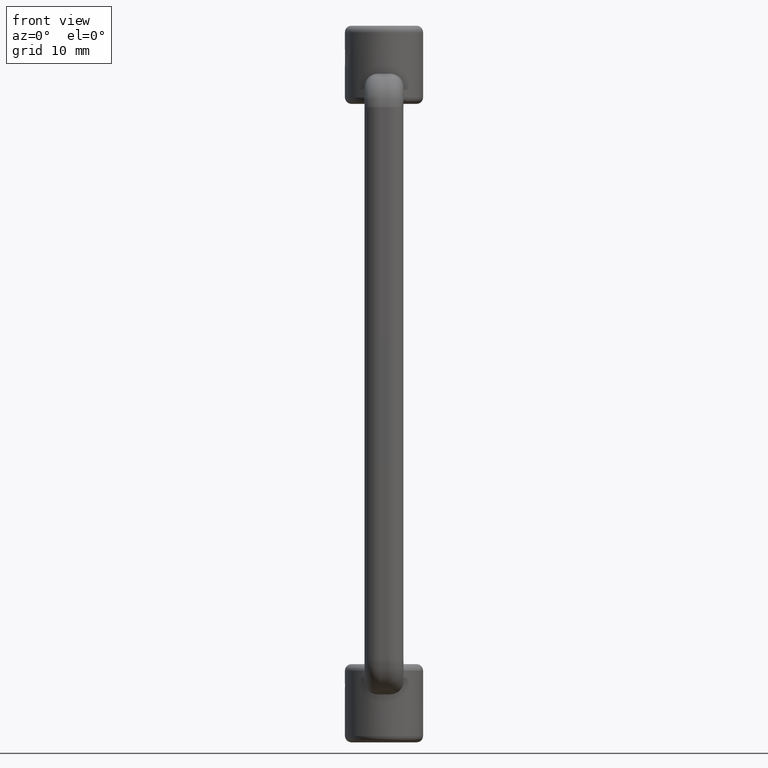
[diagram: clean part render]
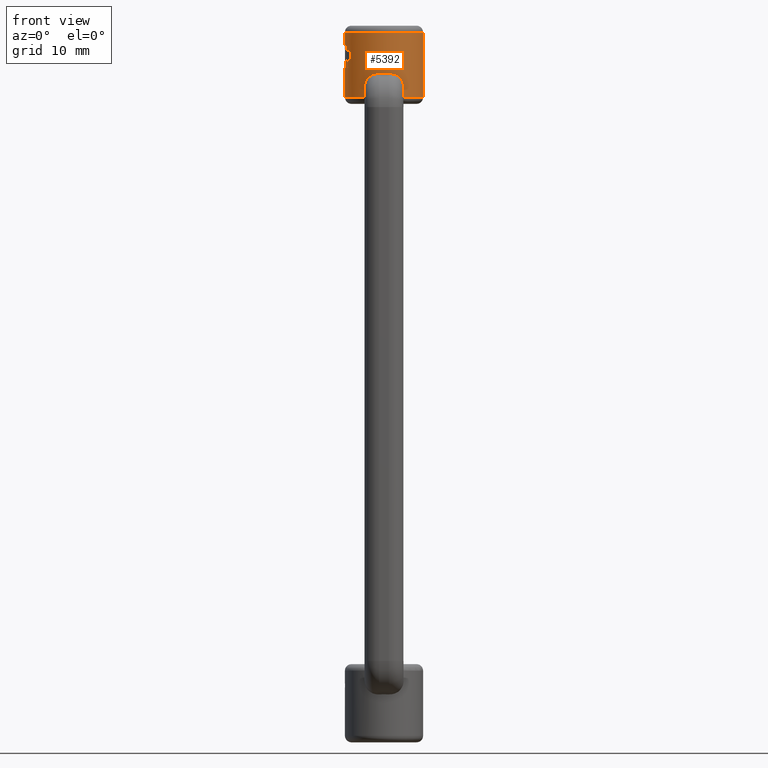
[diagram: same view with one face highlighted and labeled with its STEP entity id]
A machine part, front view. The second image highlights one B-rep face of the part: STEP entity #5392.
In plain terms, the highlighted cylindrical surface (partial cylindrical patch) has radius 6 mm, axis along (-0, -0, 1).
Its self-contained STEP definition (entity closure, byte-faithful):
#35 = VECTOR ( 'NONE', #5380, 1000.000000000000000 ) ;
#57 = ORIENTED_EDGE ( 'NONE', *, *, #16951, .T. ) ;
#86 = CARTESIAN_POINT ( 'NONE',  ( 0.0000000000000000000, 8.766172331216892400E-017, 44.00000000000000000 ) ) ;
#112 = CIRCLE ( 'NONE', #2202, 6.000000000000010700 ) ;
#122 = EDGE_CURVE ( 'NONE', #16494, #2806, #8639, .T. ) ;
#184 = CARTESIAN_POINT ( 'NONE',  ( -5.829001676913454900, -1.422230449167874600, 50.94130608974358400 ) ) ;
#191 = EDGE_CURVE ( 'NONE', #2806, #1206, #7372, .T. ) ;
#309 = CARTESIAN_POINT ( 'NONE',  ( -5.020110415954266400, -3.286105812603667100, 52.00000000000000000 ) ) ;
#446 = CARTESIAN_POINT ( 'NONE',  ( 3.006789111494904800, -5.192295254808551700, 45.43910314158557600 ) ) ;
#505 = CARTESIAN_POINT ( 'NONE',  ( 2.518899704307326900, -5.446201719094947400, 46.91376766499575300 ) ) ;
#543 = CARTESIAN_POINT ( 'NONE',  ( 2.647647802095501200, -5.384232639481599100, 44.00000000000000000 ) ) ;
#609 = CARTESIAN_POINT ( 'NONE',  ( -2.937028009429679500, -5.232118848946893100, 46.08331505875865700 ) ) ;
#724 = CARTESIAN_POINT ( 'NONE',  ( 0.0000000000000000000, 8.766172331216892400E-017, 43.00000000000000000 ) ) ;
#988 = EDGE_CURVE ( 'NONE', #16494, #1975, #6535, .T. ) ;
#1191 = AXIS2_PLACEMENT_3D ( 'NONE', #13273, #6717, #11947 ) ;
#1206 = VERTEX_POINT ( 'NONE', #4493 ) ;
#1249 = CARTESIAN_POINT ( 'NONE',  ( -5.748206089968974200, -1.719920564224905800, 52.00000000000000000 ) ) ;
#1491 = AXIS2_PLACEMENT_3D ( 'NONE', #724, #12575, #7390 ) ;
#1534 = CIRCLE ( 'NONE', #8452, 6.000000000000009800 ) ;
#1708 = B_SPLINE_CURVE_WITH_KNOTS ( 'NONE', 3,
 ( #11332, #4692, #2071, #3448 ),
 .UNSPECIFIED., .F., .F.,
 ( 4, 4 ),
 ( 0.0000000000000000000, 1.000000000000000000 ),
 .UNSPECIFIED. ) ;
#1733 = LINE ( 'NONE', #2802, #7085 ) ;
#1857 = ORIENTED_EDGE ( 'NONE', *, *, #122, .F. ) ;
#1881 = CARTESIAN_POINT ( 'NONE',  ( -2.876389095800485900, -5.265699093875367600, 46.28729861658227700 ) ) ;
#1975 = VERTEX_POINT ( 'NONE', #10804 ) ;
#1995 = CARTESIAN_POINT ( 'NONE',  ( -2.647647802106354800, -5.384232639476262100, 44.00000000000000000 ) ) ;
#2001 = DIRECTION ( 'NONE',  ( -0.0000000000000000000, -0.0000000000000000000, 1.000000000000000000 ) ) ;
#2071 = CARTESIAN_POINT ( 'NONE',  ( -5.227788996538787800, -2.951107793066412900, 49.66666666666666400 ) ) ;
#2129 = ORIENTED_EDGE ( 'NONE', *, *, #16729, .T. ) ;
#2161 = EDGE_CURVE ( 'NONE', #6976, #6697, #16005, .T. ) ;
#2202 = AXIS2_PLACEMENT_3D ( 'NONE', #2523, #16924, #14212 ) ;
#2277 = EDGE_CURVE ( 'NONE', #12147, #14068, #3711, .T. ) ;
#2294 = CARTESIAN_POINT ( 'NONE',  ( -0.5020489336777608200, -5.984179347933527500, 47.62973186184836300 ) ) ;
#2523 = CARTESIAN_POINT ( 'NONE',  ( 0.0000000000000000000, 8.766172331216892400E-017, 52.00000000000000000 ) ) ;
#2736 = EDGE_CURVE ( 'NONE', #9759, #6697, #1733, .T. ) ;
#2802 = CARTESIAN_POINT ( 'NONE',  ( -6.000000000000010700, 8.224498028005821500E-016, 43.00000000000000000 ) ) ;
#2806 = VERTEX_POINT ( 'NONE', #13212 ) ;
#3101 = CARTESIAN_POINT ( 'NONE',  ( 2.945415158984749000, -5.227405318499182700, 46.08118356738097500 ) ) ;
#3149 = CARTESIAN_POINT ( 'NONE',  ( -2.139499387634895100, -5.608793237177804000, 47.26842114431990200 ) ) ;
#3169 = CARTESIAN_POINT ( 'NONE',  ( -6.000000000000010700, 8.224498028005821500E-016, 44.00000000000000000 ) ) ;
#3260 = CARTESIAN_POINT ( 'NONE',  ( -2.705202318175256200, -5.356494360880863500, 46.66855899341489100 ) ) ;
#3448 = CARTESIAN_POINT ( 'NONE',  ( -5.318956321578233400, -2.776455230891194500, 48.49999999999999300 ) ) ;
#3456 = CARTESIAN_POINT ( 'NONE',  ( -5.765903812712871900, -1.680836609969770700, 50.12753739316239200 ) ) ;
#3500 = ORIENTED_EDGE ( 'NONE', *, *, #2736, .F. ) ;
#3586 = CIRCLE ( 'NONE', #1191, 6.000000000000010700 ) ;
#3637 = CARTESIAN_POINT ( 'NONE',  ( -5.999924257142286200, -0.03014811031751705700, 52.00000000000000000 ) ) ;
#3669 = ORIENTED_EDGE ( 'NONE', *, *, #191, .F. ) ;
#3711 = B_SPLINE_CURVE_WITH_KNOTS ( 'NONE', 3,
 ( #11604, #6191, #10157, #16724 ),
 .UNSPECIFIED., .F., .F.,
 ( 4, 4 ),
 ( 0.0000000000000000000, 1.000000000000000000 ),
 .UNSPECIFIED. ) ;
#3736 = VERTEX_POINT ( 'NONE', #16607 ) ;
#4316 = CARTESIAN_POINT ( 'NONE',  ( 2.143290492561870800, -5.607358268053874700, 47.26585826454376600 ) ) ;
#4432 = CARTESIAN_POINT ( 'NONE',  ( -1.780751197024106800, -5.732795511912036600, 47.46783385374886400 ) ) ;
#4472 = ORIENTED_EDGE ( 'NONE', *, *, #2277, .T. ) ;
#4493 = CARTESIAN_POINT ( 'NONE',  ( -0.7499999999999981100, -5.952940449895340400, 47.64159737816591900 ) ) ;
#4543 = CARTESIAN_POINT ( 'NONE',  ( -2.585578421057401300, -5.416492610243455600, 46.84347446244596100 ) ) ;
#4662 = CARTESIAN_POINT ( 'NONE',  ( -2.800668084150553600, -5.308986296950158700, 44.39628917195786800 ) ) ;
#4692 = CARTESIAN_POINT ( 'NONE',  ( -5.128012561610508300, -3.121266115952655800, 50.83333333333332900 ) ) ;
#4784 = DIRECTION ( 'NONE',  ( 1.000000000000000000, 0.0000000000000000000, 0.0000000000000000000 ) ) ;
#4837 = CARTESIAN_POINT ( 'NONE',  ( 0.0000000000000000000, 8.766172331216892400E-017, 44.00000000000000000 ) ) ;
#4839 = CIRCLE ( 'NONE', #7784, 6.000000000000010700 ) ;
#4855 = B_SPLINE_CURVE_WITH_KNOTS ( 'NONE', 3,
 ( #12517, #11140, #13775, #16325, #4432, #3149, #13602, #4543, #3260, #7169, #1881, #609, #12350, #8429, #16439, #9769, #4662, #1995 ),
 .UNSPECIFIED., .F., .F.,
 ( 4, 2, 2, 2, 2, 2, 2, 2, 4 ),
 ( 1.989487527437686900E-007, 0.0006422322189905879900, 0.001284265489228432200, 0.001926298759466276200, 0.002568332029704120700, 0.002889348664823042000, 0.003210365299941963400, 0.003852398570179807800, 0.005136465110655495000 ),
 .UNSPECIFIED. ) ;
#4962 = VERTEX_POINT ( 'NONE', #13145 ) ;
#5081 = EDGE_LOOP ( 'NONE', ( #12783, #15115, #15038, #3669, #1857, #12013, #7525, #8366, #3500, #2129, #57, #5871, #15332, #9163, #4472, #16894, #14357, #8344, #10918, #10299, #16552 ) ) ;
#5270 = EDGE_CURVE ( 'NONE', #16440, #11407, #1708, .T. ) ;
#5291 = B_SPLINE_CURVE_WITH_KNOTS ( 'NONE', 3,
 ( #16492, #8607, #16386, #11086 ),
 .UNSPECIFIED., .F., .F.,
 ( 4, 4 ),
 ( 0.0000000000000000000, 1.000000000000000000 ),
 .UNSPECIFIED. ) ;
#5380 = DIRECTION ( 'NONE',  ( -0.0000000000000000000, -0.0000000000000000000, 1.000000000000000000 ) ) ;
#5392 = ADVANCED_FACE ( 'NONE', ( #14259 ), #6824, .T. ) ;
#5525 = CARTESIAN_POINT ( 'NONE',  ( -2.647647802106354800, -5.384232639476262100, 44.00000000000000000 ) ) ;
#5639 = CARTESIAN_POINT ( 'NONE',  ( 0.9650953604838098400, -5.925840981704811700, 47.65189060879237100 ) ) ;
#5749 = CARTESIAN_POINT ( 'NONE',  ( 2.751915404549501800, -5.331932984584225800, 46.57028028939994600 ) ) ;
#5866 = EDGE_CURVE ( 'NONE', #11750, #10844, #7820, .T. ) ;
#5871 = ORIENTED_EDGE ( 'NONE', *, *, #15502, .T. ) ;
#5997 = CARTESIAN_POINT ( 'NONE',  ( -5.970098431671918800, -0.6455801439905802800, 50.52624198717948200 ) ) ;
#6020 = EDGE_CURVE ( 'NONE', #4962, #6562, #15893, .T. ) ;
#6126 = CARTESIAN_POINT ( 'NONE',  ( 0.0000000000000000000, 8.766172331216892400E-017, 48.49999999999999300 ) ) ;
#6191 = CARTESIAN_POINT ( 'NONE',  ( -5.449840656507765500, -2.512905754457286400, 50.52624198717948200 ) ) ;
#6230 = CARTESIAN_POINT ( 'NONE',  ( -5.499551675904338100, -2.398943801771503500, 49.78936298076922600 ) ) ;
#6272 = CARTESIAN_POINT ( 'NONE',  ( 0.4995404833553977500, -5.984495382968245500, 47.62961182179902400 ) ) ;
#6363 = EDGE_CURVE ( 'NONE', #11580, #3736, #15700, .T. ) ;
#6535 = CIRCLE ( 'NONE', #7098, 6.000000000000010700 ) ;
#6562 = VERTEX_POINT ( 'NONE', #1249 ) ;
#6606 = CARTESIAN_POINT ( 'NONE',  ( -5.938604984139017200, -0.8971221784516798500, 49.31376869658119200 ) ) ;
#6697 = VERTEX_POINT ( 'NONE', #16667 ) ;
#6717 = DIRECTION ( 'NONE',  ( -0.0000000000000000000, -0.0000000000000000000, 1.000000000000000000 ) ) ;
#6799 = DIRECTION ( 'NONE',  ( -0.0000000000000000000, -0.0000000000000000000, 1.000000000000000000 ) ) ;
#6824 = CYLINDRICAL_SURFACE ( 'NONE', #1491, 6.000000000000010700 ) ;
#6976 = VERTEX_POINT ( 'NONE', #12614 ) ;
#7085 = VECTOR ( 'NONE', #10634, 1000.000000000000000 ) ;
#7098 = AXIS2_PLACEMENT_3D ( 'NONE', #86, #11869, #9290 ) ;
#7124 = CARTESIAN_POINT ( 'NONE',  ( 2.937398188807678800, -5.232067944592826000, 44.79533901303744900 ) ) ;
#7169 = CARTESIAN_POINT ( 'NONE',  ( -2.838942773334230700, -5.286108378082665200, 46.38542160062280600 ) ) ;
#7267 = CARTESIAN_POINT ( 'NONE',  ( -5.685571157909509000, -1.935236185900580900, 49.31376869658119900 ) ) ;
#7372 = B_SPLINE_CURVE_WITH_KNOTS ( 'NONE', 3,
 ( #12767, #6272, #15261, #10064, #2294, #12889 ),
 .UNSPECIFIED., .F., .F.,
 ( 4, 2, 4 ),
 ( 0.01739427789130242000, 0.01814323912299327400, 0.01889220035468413100 ),
 .UNSPECIFIED. ) ;
#7390 = DIRECTION ( 'NONE',  ( 1.000000000000000000, 0.0000000000000000000, 0.0000000000000000000 ) ) ;
#7525 = ORIENTED_EDGE ( 'NONE', *, *, #12522, .T. ) ;
#7784 = AXIS2_PLACEMENT_3D ( 'NONE', #4837, #16456, #4784 ) ;
#7820 = B_SPLINE_CURVE_WITH_KNOTS ( 'NONE', 3,
 ( #11403, #7267, #3456, #11344 ),
 .UNSPECIFIED., .F., .F.,
 ( 4, 4 ),
 ( 0.0000000000000000000, 1.000000000000000000 ),
 .UNSPECIFIED. ) ;
#7873 = CARTESIAN_POINT ( 'NONE',  ( -6.000000000000010700, 8.224498028005821500E-016, 52.00000000000000000 ) ) ;
#7891 = DIRECTION ( 'NONE',  ( -0.8366850693257096300, -0.5476843021006102500, 0.0000000000000000000 ) ) ;
#8054 = CIRCLE ( 'NONE', #12559, 6.000000000000010700 ) ;
#8092 = VECTOR ( 'NONE', #11847, 1000.000000000000000 ) ;
#8344 = ORIENTED_EDGE ( 'NONE', *, *, #11433, .F. ) ;
#8366 = ORIENTED_EDGE ( 'NONE', *, *, #2161, .T. ) ;
#8429 = CARTESIAN_POINT ( 'NONE',  ( -3.006026016382797200, -5.192788520952487600, 45.65923896244573400 ) ) ;
#8452 = AXIS2_PLACEMENT_3D ( 'NONE', #6126, #16709, #10141 ) ;
#8537 = VERTEX_POINT ( 'NONE', #3637 ) ;
#8545 = CARTESIAN_POINT ( 'NONE',  ( -5.986414153856038000, -0.4035412971583280400, 49.78936298076922600 ) ) ;
#8607 = CARTESIAN_POINT ( 'NONE',  ( -5.999298352363558400, -0.1547125100426174900, 51.26312099358973700 ) ) ;
#8639 = B_SPLINE_CURVE_WITH_KNOTS ( 'NONE', 3,
 ( #12185, #13555, #7124, #446, #11091, #3101, #10989, #5749, #9653, #14962, #505, #16334, #4316, #13502, #12301, #9546, #5639, #14843 ),
 .UNSPECIFIED., .F., .F.,
 ( 4, 2, 2, 2, 2, 2, 2, 2, 4 ),
 ( 2.166501582897853700E-007, 0.001282598035847452200, 0.001923788728692033400, 0.002564979421536614900, 0.002885574767958914900, 0.003206170114381215400, 0.003847360807225815900, 0.004488551500070416000, 0.005129742192915016900 ),
 .UNSPECIFIED. ) ;
#8662 = DIRECTION ( 'NONE',  ( -1.000000000000000000, 0.0000000000000000000, 0.0000000000000000000 ) ) ;
#9148 = VERTEX_POINT ( 'NONE', #8545 ) ;
#9163 = ORIENTED_EDGE ( 'NONE', *, *, #11534, .T. ) ;
#9273 = EDGE_CURVE ( 'NONE', #3736, #12824, #1534, .T. ) ;
#9290 = DIRECTION ( 'NONE',  ( 1.000000000000000000, 0.0000000000000000000, 0.0000000000000000000 ) ) ;
#9421 = AXIS2_PLACEMENT_3D ( 'NONE', #16615, #12526, #8662 ) ;
#9546 = CARTESIAN_POINT ( 'NONE',  ( 1.179724464645114800, -5.886598269086723800, 47.63311720288320600 ) ) ;
#9653 = CARTESIAN_POINT ( 'NONE',  ( 2.699534470347795300, -5.358797340173954800, 46.66224462245958900 ) ) ;
#9759 = VERTEX_POINT ( 'NONE', #7873 ) ;
#9769 = CARTESIAN_POINT ( 'NONE',  ( -2.938385424695631400, -5.231505610365315000, 44.80068779009798200 ) ) ;
#9969 = CARTESIAN_POINT ( 'NONE',  ( -5.939085859607698300, -0.8866274067353713300, 51.26312099358973700 ) ) ;
#10064 = CARTESIAN_POINT ( 'NONE',  ( -0.2530518004463773200, -5.999874388282115900, 47.62352441675258800 ) ) ;
#10139 = EDGE_CURVE ( 'NONE', #11580, #13251, #4839, .T. ) ;
#10141 = DIRECTION ( 'NONE',  ( -0.9944626394051773200, -0.1050907171318588300, 0.0000000000000000000 ) ) ;
#10157 = CARTESIAN_POINT ( 'NONE',  ( -5.396586222198060100, -2.625322010438261100, 51.26312099358974500 ) ) ;
#10180 = CARTESIAN_POINT ( 'NONE',  ( 6.000000000000010700, 8.766172331216892400E-017, 43.00000000000000000 ) ) ;
#10299 = ORIENTED_EDGE ( 'NONE', *, *, #13103, .T. ) ;
#10507 = CARTESIAN_POINT ( 'NONE',  ( -5.339891217646655100, -2.735975472057496900, 52.00000000000000000 ) ) ;
#10634 = DIRECTION ( 'NONE',  ( -0.0000000000000000000, -0.0000000000000000000, 1.000000000000000000 ) ) ;
#10639 = EDGE_CURVE ( 'NONE', #1206, #13251, #4855, .T. ) ;
#10804 = CARTESIAN_POINT ( 'NONE',  ( 6.000000000000010700, 8.766172331216892400E-017, 44.00000000000000000 ) ) ;
#10844 = VERTEX_POINT ( 'NONE', #184 ) ;
#10918 = ORIENTED_EDGE ( 'NONE', *, *, #5866, .T. ) ;
#10989 = CARTESIAN_POINT ( 'NONE',  ( 2.885886852020088900, -5.261354204090058500, 46.28475913905557300 ) ) ;
#11086 = CARTESIAN_POINT ( 'NONE',  ( -5.986414153856038000, -0.4035412971583280400, 49.78936298076922600 ) ) ;
#11091 = CARTESIAN_POINT ( 'NONE',  ( 3.006490657149723900, -5.192518729010241300, 45.65338916288284600 ) ) ;
#11140 = CARTESIAN_POINT ( 'NONE',  ( -0.9651402668200357300, -5.925835324038108500, 47.65189275775181700 ) ) ;
#11156 = CARTESIAN_POINT ( 'NONE',  ( -5.499551675904338100, -2.398943801771503500, 49.78936298076922600 ) ) ;
#11260 = DIRECTION ( 'NONE',  ( -0.9580343483281607000, -0.2866534273708172800, 0.0000000000000000000 ) ) ;
#11332 = CARTESIAN_POINT ( 'NONE',  ( -5.020110415954266400, -3.286105812603667100, 52.00000000000000000 ) ) ;
#11344 = CARTESIAN_POINT ( 'NONE',  ( -5.829001676913454900, -1.422230449167874600, 50.94130608974358400 ) ) ;
#11399 = CARTESIAN_POINT ( 'NONE',  ( -5.893604067707253000, -1.124913815856418000, 52.00000000000000000 ) ) ;
#11403 = CARTESIAN_POINT ( 'NONE',  ( -5.588713358159944600, -2.183181852325803100, 48.49999999999999300 ) ) ;
#11407 = VERTEX_POINT ( 'NONE', #15822 ) ;
#11433 = EDGE_CURVE ( 'NONE', #11750, #11407, #3586, .T. ) ;
#11437 = CARTESIAN_POINT ( 'NONE',  ( -5.588713358159944600, -2.183181852325803100, 48.49999999999999300 ) ) ;
#11534 = EDGE_CURVE ( 'NONE', #6562, #12147, #11702, .T. ) ;
#11580 = VERTEX_POINT ( 'NONE', #3169 ) ;
#11602 = LINE ( 'NONE', #10180, #8092 ) ;
#11604 = CARTESIAN_POINT ( 'NONE',  ( -5.499551675904338100, -2.398943801771503500, 49.78936298076922600 ) ) ;
#11702 = B_SPLINE_CURVE_WITH_KNOTS ( 'NONE', 3,
 ( #16506, #14966, #13739, #11156 ),
 .UNSPECIFIED., .F., .F.,
 ( 4, 4 ),
 ( 0.0000000000000000000, 1.000000000000000000 ),
 .UNSPECIFIED. ) ;
#11750 = VERTEX_POINT ( 'NONE', #11437 ) ;
#11847 = DIRECTION ( 'NONE',  ( -0.0000000000000000000, -0.0000000000000000000, 1.000000000000000000 ) ) ;
#11869 = DIRECTION ( 'NONE',  ( -0.0000000000000000000, -0.0000000000000000000, 1.000000000000000000 ) ) ;
#11900 = CARTESIAN_POINT ( 'NONE',  ( -5.829001676913454900, -1.422230449167874600, 50.94130608974358400 ) ) ;
#11927 = CARTESIAN_POINT ( 'NONE',  ( -6.000000000000010700, 8.224498028005821500E-016, 43.00000000000000000 ) ) ;
#11947 = DIRECTION ( 'NONE',  ( -0.8864927202630372700, -0.4627425384818649200, 0.0000000000000000000 ) ) ;
#11957 = CARTESIAN_POINT ( 'NONE',  ( -5.892542721898593100, -1.161807914980182300, 50.12753739316239200 ) ) ;
#12013 = ORIENTED_EDGE ( 'NONE', *, *, #988, .T. ) ;
#12147 = VERTEX_POINT ( 'NONE', #6230 ) ;
#12185 = CARTESIAN_POINT ( 'NONE',  ( 2.647647802095501200, -5.384232639481599100, 44.00000000000000000 ) ) ;
#12271 = B_SPLINE_CURVE_WITH_KNOTS ( 'NONE', 3,
 ( #11900, #11957, #6606, #13280 ),
 .UNSPECIFIED., .F., .F.,
 ( 4, 4 ),
 ( 0.0000000000000000000, 1.000000000000000000 ),
 .UNSPECIFIED. ) ;
#12301 = CARTESIAN_POINT ( 'NONE',  ( 1.586965489537352800, -5.790106175979372200, 47.54096269680397300 ) ) ;
#12350 = CARTESIAN_POINT ( 'NONE',  ( -2.960064717902257200, -5.219035171797259800, 45.97723860830461000 ) ) ;
#12517 = CARTESIAN_POINT ( 'NONE',  ( -0.7499999999999981100, -5.952940449895340400, 47.64159737816591900 ) ) ;
#12522 = EDGE_CURVE ( 'NONE', #1975, #6976, #11602, .T. ) ;
#12526 = DIRECTION ( 'NONE',  ( 0.0000000000000000000, 0.0000000000000000000, -1.000000000000000000 ) ) ;
#12559 = AXIS2_PLACEMENT_3D ( 'NONE', #14703, #6799, #7891 ) ;
#12575 = DIRECTION ( 'NONE',  ( -0.0000000000000000000, -0.0000000000000000000, 1.000000000000000000 ) ) ;
#12614 = CARTESIAN_POINT ( 'NONE',  ( 6.000000000000010700, 8.766172331216892400E-017, 53.99999999999999300 ) ) ;
#12767 = CARTESIAN_POINT ( 'NONE',  ( 0.7499999999999981100, -5.952940449895340400, 47.64159737816591900 ) ) ;
#12783 = ORIENTED_EDGE ( 'NONE', *, *, #6363, .F. ) ;
#12785 = B_SPLINE_CURVE_WITH_KNOTS ( 'NONE', 3,
 ( #13879, #5997, #9969, #11399 ),
 .UNSPECIFIED., .F., .F.,
 ( 4, 4 ),
 ( 0.0000000000000000000, 1.000000000000000000 ),
 .UNSPECIFIED. ) ;
#12824 = VERTEX_POINT ( 'NONE', #15046 ) ;
#12889 = CARTESIAN_POINT ( 'NONE',  ( -0.7499999999999981100, -5.952940449895340400, 47.64159737816591900 ) ) ;
#13103 = EDGE_CURVE ( 'NONE', #10844, #12824, #12271, .T. ) ;
#13145 = CARTESIAN_POINT ( 'NONE',  ( -5.893604067707253000, -1.124913815856418000, 52.00000000000000000 ) ) ;
#13212 = CARTESIAN_POINT ( 'NONE',  ( 0.7499999999999981100, -5.952940449895340400, 47.64159737816591900 ) ) ;
#13251 = VERTEX_POINT ( 'NONE', #5525 ) ;
#13273 = CARTESIAN_POINT ( 'NONE',  ( 0.0000000000000000000, 8.766172331216892400E-017, 48.49999999999999300 ) ) ;
#13280 = CARTESIAN_POINT ( 'NONE',  ( -5.966775836431073900, -0.6305443027911539200, 48.49999999999999300 ) ) ;
#13502 = CARTESIAN_POINT ( 'NONE',  ( 1.783913712234235700, -5.731824556728942500, 47.46652278982664800 ) ) ;
#13555 = CARTESIAN_POINT ( 'NONE',  ( 2.800019534227935500, -5.309305215520881300, 44.39460956904219600 ) ) ;
#13602 = CARTESIAN_POINT ( 'NONE',  ( -2.304958704577130000, -5.541730175536675200, 47.14079233760908500 ) ) ;
#13739 = CARTESIAN_POINT ( 'NONE',  ( -5.595983578192430300, -2.177874750696821200, 50.52624198717948200 ) ) ;
#13775 = CARTESIAN_POINT ( 'NONE',  ( -1.175002378236735800, -5.887585423306050300, 47.63384109583812200 ) ) ;
#13879 = CARTESIAN_POINT ( 'NONE',  ( -5.986414153856038000, -0.4035412971583280400, 49.78936298076922600 ) ) ;
#13904 = CARTESIAN_POINT ( 'NONE',  ( 0.0000000000000000000, 8.766172331216892400E-017, 52.00000000000000000 ) ) ;
#14068 = VERTEX_POINT ( 'NONE', #10507 ) ;
#14212 = DIRECTION ( 'NONE',  ( -0.9999873761903792500, -0.005024685052919713000, 0.0000000000000000000 ) ) ;
#14259 = FACE_OUTER_BOUND ( 'NONE', #5081, .T. ) ;
#14357 = ORIENTED_EDGE ( 'NONE', *, *, #5270, .T. ) ;
#14513 = AXIS2_PLACEMENT_3D ( 'NONE', #13904, #2001, #11260 ) ;
#14587 = EDGE_CURVE ( 'NONE', #14068, #16440, #8054, .T. ) ;
#14703 = CARTESIAN_POINT ( 'NONE',  ( 0.0000000000000000000, 8.766172331216892400E-017, 52.00000000000000000 ) ) ;
#14843 = CARTESIAN_POINT ( 'NONE',  ( 0.7499999999999981100, -5.952940449895340400, 47.64159737816591900 ) ) ;
#14962 = CARTESIAN_POINT ( 'NONE',  ( 2.583220519880362600, -5.415825609758909000, 46.83352028015509900 ) ) ;
#14966 = CARTESIAN_POINT ( 'NONE',  ( -5.679069325835468100, -1.950984938300848200, 51.26312099358973700 ) ) ;
#15038 = ORIENTED_EDGE ( 'NONE', *, *, #10639, .F. ) ;
#15046 = CARTESIAN_POINT ( 'NONE',  ( -5.966775836431073900, -0.6305443027911539200, 48.49999999999999300 ) ) ;
#15115 = ORIENTED_EDGE ( 'NONE', *, *, #10139, .T. ) ;
#15261 = CARTESIAN_POINT ( 'NONE',  ( 0.2470596802528517200, -6.000124115655126800, 47.62342693321000600 ) ) ;
#15332 = ORIENTED_EDGE ( 'NONE', *, *, #6020, .T. ) ;
#15502 = EDGE_CURVE ( 'NONE', #9148, #4962, #12785, .T. ) ;
#15700 = LINE ( 'NONE', #11927, #35 ) ;
#15822 = CARTESIAN_POINT ( 'NONE',  ( -5.318956321578233400, -2.776455230891194500, 48.49999999999999300 ) ) ;
#15893 = CIRCLE ( 'NONE', #14513, 6.000000000000010700 ) ;
#16005 = CIRCLE ( 'NONE', #9421, 6.000000000000010700 ) ;
#16325 = CARTESIAN_POINT ( 'NONE',  ( -1.584637498173550500, -5.790787226705030700, 47.54182828196157100 ) ) ;
#16334 = CARTESIAN_POINT ( 'NONE',  ( 2.307299012493393900, -5.540780342936117500, 47.13899643784969800 ) ) ;
#16386 = CARTESIAN_POINT ( 'NONE',  ( -5.994792072858095000, -0.2792573806250013300, 50.52624198717948900 ) ) ;
#16439 = CARTESIAN_POINT ( 'NONE',  ( -3.006750691557126900, -5.192315499144677400, 45.44067078650116500 ) ) ;
#16440 = VERTEX_POINT ( 'NONE', #309 ) ;
#16456 = DIRECTION ( 'NONE',  ( -0.0000000000000000000, -0.0000000000000000000, 1.000000000000000000 ) ) ;
#16492 = CARTESIAN_POINT ( 'NONE',  ( -5.999924257142286200, -0.03014811031751705700, 52.00000000000000000 ) ) ;
#16494 = VERTEX_POINT ( 'NONE', #543 ) ;
#16506 = CARTESIAN_POINT ( 'NONE',  ( -5.748206089968974200, -1.719920564224905800, 52.00000000000000000 ) ) ;
#16552 = ORIENTED_EDGE ( 'NONE', *, *, #9273, .F. ) ;
#16607 = CARTESIAN_POINT ( 'NONE',  ( -6.000000000000010700, 8.224498028005821500E-016, 48.49999999999999300 ) ) ;
#16615 = CARTESIAN_POINT ( 'NONE',  ( 0.0000000000000000000, 8.766172331216892400E-017, 53.99999999999999300 ) ) ;
#16667 = CARTESIAN_POINT ( 'NONE',  ( -6.000000000000010700, 8.224498028005821500E-016, 53.99999999999999300 ) ) ;
#16709 = DIRECTION ( 'NONE',  ( -0.0000000000000000000, -0.0000000000000000000, 1.000000000000000000 ) ) ;
#16724 = CARTESIAN_POINT ( 'NONE',  ( -5.339891217646655100, -2.735975472057496900, 52.00000000000000000 ) ) ;
#16729 = EDGE_CURVE ( 'NONE', #9759, #8537, #112, .T. ) ;
#16894 = ORIENTED_EDGE ( 'NONE', *, *, #14587, .T. ) ;
#16924 = DIRECTION ( 'NONE',  ( -0.0000000000000000000, -0.0000000000000000000, 1.000000000000000000 ) ) ;
#16951 = EDGE_CURVE ( 'NONE', #8537, #9148, #5291, .T. ) ;